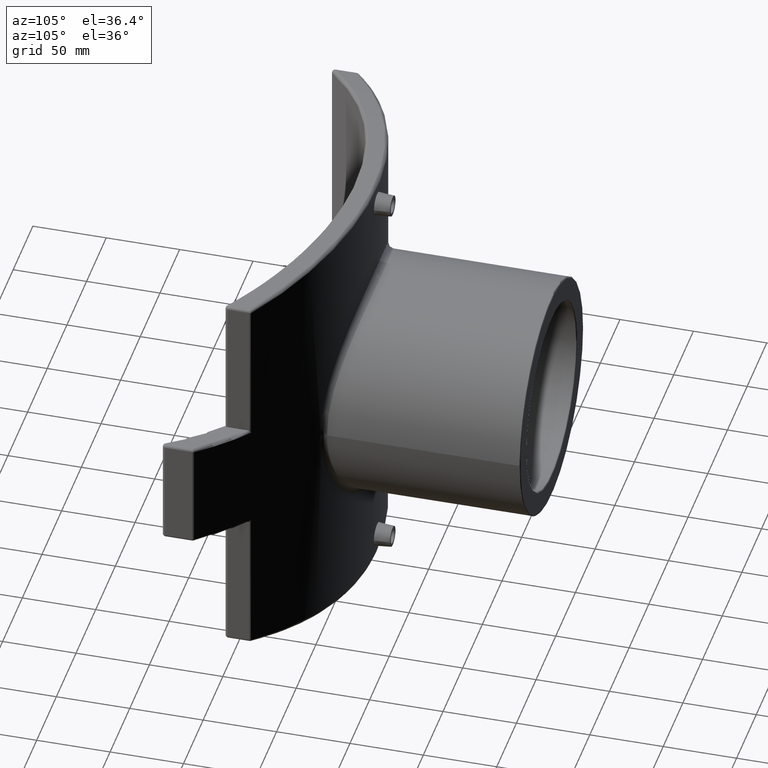
[diagram: clean part render]
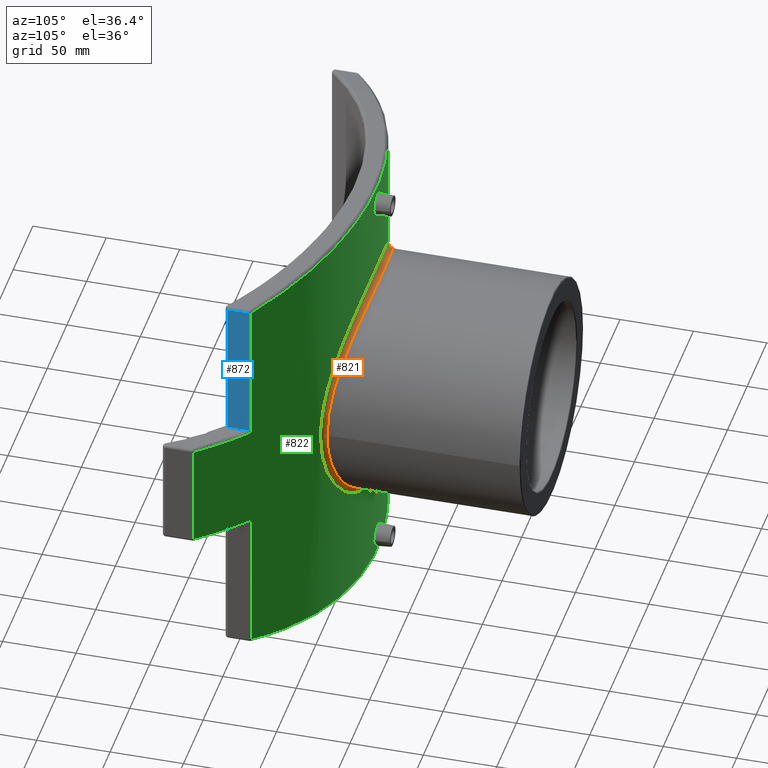
[diagram: same view with three faces highlighted in distinct colors, each labeled with its STEP entity id]
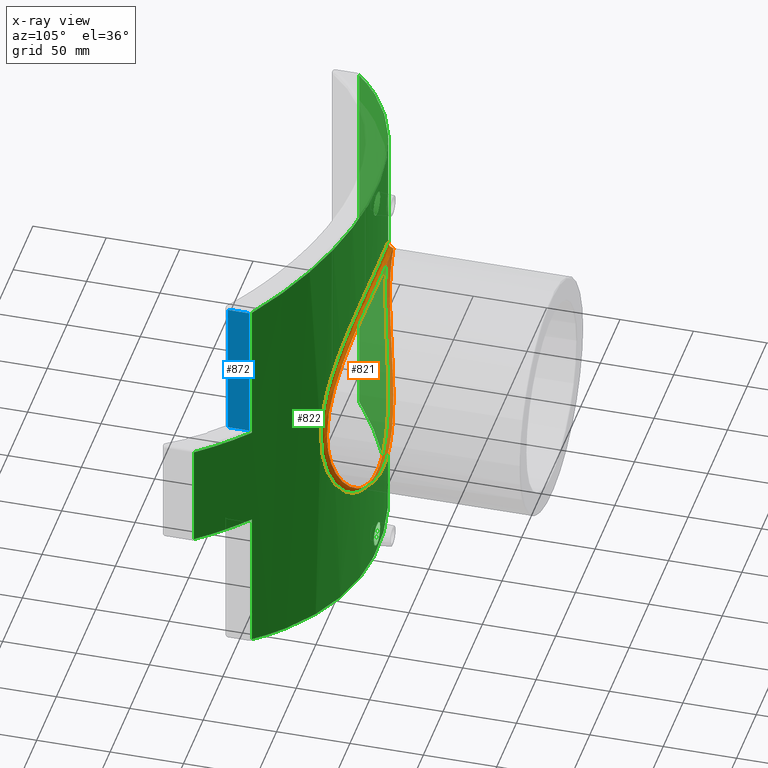
[diagram: x-ray of the same camera — body ghosted, the three highlighted faces saturated]
A machine part, auxiliary view with three faces highlighted in distinct colors.
The next image is the same camera in x-ray (body ghosted, the three faces saturated) — at least one of them is partly hidden behind the body in this view.
Their STEP definitions:

[orange] entity #821 — the highlighted face is a freeform B-spline surface patch.
#89=B_SPLINE_SURFACE_WITH_KNOTS('',3,3,((#1395,#1396,#1397,#1398,#1399,
#1400,#1401,#1402,#1403,#1404,#1405,#1406,#1407,#1408,#1409,#1410,#1411,
#1412,#1413,#1414,#1415,#1416,#1417,#1418,#1419),(#1420,#1421,#1422,#1423,
#1424,#1425,#1426,#1427,#1428,#1429,#1430,#1431,#1432,#1433,#1434,#1435,
#1436,#1437,#1438,#1439,#1440,#1441,#1442,#1443,#1444),(#1445,#1446,#1447,
#1448,#1449,#1450,#1451,#1452,#1453,#1454,#1455,#1456,#1457,#1458,#1459,
#1460,#1461,#1462,#1463,#1464,#1465,#1466,#1467,#1468,#1469),(#1470,#1471,
#1472,#1473,#1474,#1475,#1476,#1477,#1478,#1479,#1480,#1481,#1482,#1483,
#1484,#1485,#1486,#1487,#1488,#1489,#1490,#1491,#1492,#1493,#1494),(#1495,
#1496,#1497,#1498,#1499,#1500,#1501,#1502,#1503,#1504,#1505,#1506,#1507,
#1508,#1509,#1510,#1511,#1512,#1513,#1514,#1515,#1516,#1517,#1518,#1519)),
 .UNSPECIFIED.,.F.,.T.,.F.,(4,1,4),(4,1,1,1,1,1,1,1,1,1,1,1,1,1,1,1,1,1,
1,1,1,1,4),(0.,0.571428571428571,1.),(-2.33815226552735E-18,1.74028306102578,
3.48056612205155,6.9611322441031,9.28150965880413,11.6018870735052,13.9222644882062,
16.2426419029072,18.5630193176083,20.8833967323093,23.2037741470103,25.5241515617114,
27.8445289764124,30.1649063911134,32.4852838058145,34.8056612205155,36.5459442815413,
38.2862273425671,39.1563688730799,41.7667934646186,45.2473595866702,46.9876426476959,
48.7279257087217),.UNSPECIFIED.);
#95=B_SPLINE_CURVE_WITH_KNOTS('',3,(#1370,#1371,#1372,#1373,#1374,#1375,
#1376,#1377,#1378,#1379,#1380,#1381,#1382,#1383,#1384,#1385,#1386,#1387,
#1388,#1389,#1390,#1391,#1392,#1393,#1394),.UNSPECIFIED.,.T.,.F.,(4,1,1,
1,1,1,1,1,1,1,1,1,1,1,1,1,1,1,1,1,1,1,4),(-2.33815226552735E-18,1.74028306102578,
3.48056612205155,6.9611322441031,9.28150965880413,11.6018870735052,13.9222644882062,
16.2426419029072,18.5630193176083,20.8833967323093,23.2037741470103,25.5241515617114,
27.8445289764124,30.1649063911134,32.4852838058145,34.8056612205155,36.5459442815413,
38.2862273425671,39.1563688730799,41.7667934646186,45.2473595866702,46.9876426476959,
48.7279257087217),.UNSPECIFIED.);
#96=B_SPLINE_CURVE_WITH_KNOTS('',3,(#1522,#1523,#1524,#1525,#1526,#1527,
#1528,#1529,#1530,#1531,#1532,#1533,#1534,#1535,#1536,#1537,#1538,#1539,
#1540,#1541,#1542,#1543,#1544,#1545,#1546),.UNSPECIFIED.,.T.,.F.,(4,1,1,
1,1,1,1,1,1,1,1,1,1,1,1,1,1,1,1,1,1,1,4),(-48.7279257087217,-46.9876426476959,
-45.2473595866702,-41.7667934646186,-39.1563688730799,-38.2862273425671,
-36.5459442815413,-34.8056612205155,-32.4852838058145,-30.1649063911134,
-27.8445289764124,-25.5241515617114,-23.2037741470103,-20.8833967323093,
-18.5630193176083,-16.2426419029072,-13.9222644882062,-11.6018870735052,
-9.28150965880413,-6.9611322441031,-3.48056612205155,-1.74028306102578,
2.33815226552735E-18),.UNSPECIFIED.);
#184=FACE_OUTER_BOUND('',#255,.T.);
#255=EDGE_LOOP('',(#592,#593,#594,#595));
#338=CIRCLE('',#893,4.00000000000001);
#402=VERTEX_POINT('',#1369);
#403=VERTEX_POINT('',#1520);
#473=EDGE_CURVE('',#402,#402,#95,.T.);
#474=EDGE_CURVE('',#403,#402,#338,.T.);
#475=EDGE_CURVE('',#403,#403,#96,.T.);
#592=ORIENTED_EDGE('',*,*,#474,.T.);
#593=ORIENTED_EDGE('',*,*,#473,.T.);
#594=ORIENTED_EDGE('',*,*,#474,.F.);
#595=ORIENTED_EDGE('',*,*,#475,.T.);
#821=ADVANCED_FACE('',(#184),#89,.T.);
#893=AXIS2_PLACEMENT_3D('',#1521,#1028,#1029);
#1028=DIRECTION('center_axis',(0.,-3.00542680027778E-16,-1.));
#1029=DIRECTION('ref_axis',(-0.383561643835616,-0.923515276201818,2.77555756156288E-16));
#1369=CARTESIAN_POINT('',(80.,202.249845488198,-5.55111512312578E-16));
#1370=CARTESIAN_POINT('Ctrl Pts',(80.0004488767873,202.249269617968,7.15977342936643E-5));
#1371=CARTESIAN_POINT('Ctrl Pts',(80.0003600274371,202.249175648554,6.04190311180766));
#1372=CARTESIAN_POINT('Ctrl Pts',(78.6203361259388,202.860054318116,18.1250130461819));
#1373=CARTESIAN_POINT('Ctrl Pts',(70.5819080288915,206.206465741133,40.8841764438193));
#1374=CARTESIAN_POINT('Ctrl Pts',(54.1852015292653,212.010010224419,61.3739766472002));
#1375=CARTESIAN_POINT('Ctrl Pts',(29.9069993703425,217.178767454363,75.4959365174421));
#1376=CARTESIAN_POINT('Ctrl Pts',(6.14626764597779,219.409513154501,81.0014012331245));
#1377=CARTESIAN_POINT('Ctrl Pts',(-18.2691659890036,218.641335925017,79.1411590182724));
#1378=CARTESIAN_POINT('Ctrl Pts',(-40.793994783905,215.156163962703,70.1970685737484));
#1379=CARTESIAN_POINT('Ctrl Pts',(-59.4964785806378,210.152291182072,55.2202693485789));
#1380=CARTESIAN_POINT('Ctrl Pts',(-73.0501553158526,205.237023332344,35.4422094970188));
#1381=CARTESIAN_POINT('Ctrl Pts',(-80.2997346120817,202.123053516472,12.2530065847879));
#1382=CARTESIAN_POINT('Ctrl Pts',(-80.3000352960473,202.122588493016,-12.2522564189039));
#1383=CARTESIAN_POINT('Ctrl Pts',(-73.0498568844576,205.237978081614,-35.4419120261875));
#1384=CARTESIAN_POINT('Ctrl Pts',(-59.4971988793186,210.151024848992,-55.2189901040724));
#1385=CARTESIAN_POINT('Ctrl Pts',(-40.7941557362652,215.157827233391,-70.1981831478588));
#1386=CARTESIAN_POINT('Ctrl Pts',(-20.1462313608208,218.347881407558,-78.3938690408521));
#1387=CARTESIAN_POINT('Ctrl Pts',(0.00316159241978377,219.281170881787,
-80.6891975232019));
#1388=CARTESIAN_POINT('Ctrl Pts',(15.1031933597435,218.577237732905,-78.9660968133002));
#1389=CARTESIAN_POINT('Ctrl Pts',(32.4549789636641,216.611072322871,-73.9214302994889));
#1390=CARTESIAN_POINT('Ctrl Pts',(53.558309273775,212.237916472355,-62.1675139980827));
#1391=CARTESIAN_POINT('Ctrl Pts',(70.5801216151865,206.204673849269,-40.8821703830477));
#1392=CARTESIAN_POINT('Ctrl Pts',(78.6208692220402,202.860618134602,-18.1259760382583));
#1393=CARTESIAN_POINT('Ctrl Pts',(80.0005377261376,202.249363587383,-6.04175991633906));
#1394=CARTESIAN_POINT('Ctrl Pts',(80.0004488767873,202.249269617968,7.15977342936643E-5));
#1395=CARTESIAN_POINT('Ctrl Pts',(82.4662161366884,198.555219031339,7.51776209853724E-5));
#1396=CARTESIAN_POINT('Ctrl Pts',(82.4661245488308,198.555126778261,6.34399826739804));
#1397=CARTESIAN_POINT('Ctrl Pts',(81.043565664067,199.154847846553,19.0312636984911));
#1398=CARTESIAN_POINT('Ctrl Pts',(72.7573777969054,202.440137599742,42.9283852660102));
#1399=CARTESIAN_POINT('Ctrl Pts',(55.8552933572221,208.137681270548,64.4426754795603));
#1400=CARTESIAN_POINT('Ctrl Pts',(30.8287904468257,213.212031975744,79.2707333433141));
#1401=CARTESIAN_POINT('Ctrl Pts',(6.33570740218942,215.402033462181,85.0514712947807));
#1402=CARTESIAN_POINT('Ctrl Pts',(-18.8322567215414,214.647886867026,83.098216969186));
#1403=CARTESIAN_POINT('Ctrl Pts',(-42.0513439382035,211.226371013612,73.7069220024358));
#1404=CARTESIAN_POINT('Ctrl Pts',(-61.3302741533286,206.313893169614,57.9812828160079));
#1405=CARTESIAN_POINT('Ctrl Pts',(-75.3017011988754,201.488401901616,37.2143199718697));
#1406=CARTESIAN_POINT('Ctrl Pts',(-82.7747264323171,198.431308246765,12.8656569140273));
#1407=CARTESIAN_POINT('Ctrl Pts',(-82.7750363839392,198.430851716888,-12.8648692398492));
#1408=CARTESIAN_POINT('Ctrl Pts',(-75.3013935692525,201.489339212543,-37.2140076274968));
#1409=CARTESIAN_POINT('Ctrl Pts',(-61.3310166529963,206.312649965906,-57.9799396092761));
#1410=CARTESIAN_POINT('Ctrl Pts',(-42.0515098514241,211.228003904927,-73.7080923052516));
#1411=CARTESIAN_POINT('Ctrl Pts',(-20.7671768479694,214.359792249429,-82.3135624928948));
#1412=CARTESIAN_POINT('Ctrl Pts',(0.00325903876149769,215.276035340567,
-84.7236573993618));
#1413=CARTESIAN_POINT('Ctrl Pts',(15.5687027441191,214.584959418148,-82.9144016539653));
#1414=CARTESIAN_POINT('Ctrl Pts',(33.4553036577497,212.654705705102,-77.6175018144634));
#1415=CARTESIAN_POINT('Ctrl Pts',(55.2090790801584,208.36142484729,-65.2758896979868));
#1416=CARTESIAN_POINT('Ctrl Pts',(72.755536322504,202.438378436497,-42.9262789022001));
#1417=CARTESIAN_POINT('Ctrl Pts',(81.0441151912126,199.15540136502,-19.0322748401713));
#1418=CARTESIAN_POINT('Ctrl Pts',(82.4663077245459,198.555311284417,-6.34384791215605));
#1419=CARTESIAN_POINT('Ctrl Pts',(82.4662161366884,198.555219031339,7.51776209853724E-5));
#1420=CARTESIAN_POINT('Ctrl Pts',(81.6379777690586,198.899291048837,7.22662664169146E-5));
#1421=CARTESIAN_POINT('Ctrl Pts',(81.6378979519324,198.899205807618,6.27057864362562));
#1422=CARTESIAN_POINT('Ctrl Pts',(80.2192305594786,199.490095993724,18.8110339793559));
#1423=CARTESIAN_POINT('Ctrl Pts',(71.9625740029053,202.724765383777,42.416896641328));
#1424=CARTESIAN_POINT('Ctrl Pts',(55.154589021136,208.316678055292,63.6200269225782));
#1425=CARTESIAN_POINT('Ctrl Pts',(30.3915797445728,213.263904828049,78.1744706061802));
#1426=CARTESIAN_POINT('Ctrl Pts',(6.24031024015285,215.389990314281,83.8318187323606));
#1427=CARTESIAN_POINT('Ctrl Pts',(-18.5544233901619,214.658612224098,81.9216722849531));
#1428=CARTESIAN_POINT('Ctrl Pts',(-41.48552438479,211.330675129982,72.7187834385272));
#1429=CARTESIAN_POINT('Ctrl Pts',(-60.5983212930388,206.52779720363,57.2552231218401));
#1430=CARTESIAN_POINT('Ctrl Pts',(-74.4959658928286,201.78853638674,36.7749313736543));
#1431=CARTESIAN_POINT('Ctrl Pts',(-81.9454479200744,198.777240123413,12.718806007509));
#1432=CARTESIAN_POINT('Ctrl Pts',(-81.9457486783142,198.776854719242,-12.7180389210266));
#1433=CARTESIAN_POINT('Ctrl Pts',(-74.4956462885536,201.78932134174,-36.7745164852945));
#1434=CARTESIAN_POINT('Ctrl Pts',(-60.5990400985555,206.526764893851,-57.2540660369591));
#1435=CARTESIAN_POINT('Ctrl Pts',(-41.4856918566818,211.332283631518,-72.719831741982));
#1436=CARTESIAN_POINT('Ctrl Pts',(-20.465305830633,214.378435701632,-81.1529824210496));
#1437=CARTESIAN_POINT('Ctrl Pts',(0.00277531380126578,215.267860309219,
-83.5111767817448));
#1438=CARTESIAN_POINT('Ctrl Pts',(15.3434380120091,214.596794984985,-81.7408422494586));
#1439=CARTESIAN_POINT('Ctrl Pts',(32.9916606556746,212.720633295723,-76.5513760910548));
#1440=CARTESIAN_POINT('Ctrl Pts',(54.5114626686005,208.53596202856,-64.4410213693717));
#1441=CARTESIAN_POINT('Ctrl Pts',(71.9609590569583,202.723144519588,-42.4148835480857));
#1442=CARTESIAN_POINT('Ctrl Pts',(80.2197094622353,199.490607441035,-18.8120042847993));
#1443=CARTESIAN_POINT('Ctrl Pts',(81.6380575861847,198.899376290055,-6.27043411109277));
#1444=CARTESIAN_POINT('Ctrl Pts',(81.6379777690586,198.899291048837,7.22662664169146E-5));
#1445=CARTESIAN_POINT('Ctrl Pts',(80.4039728204877,200.00609319489,7.35769101394956E-5));
#1446=CARTESIAN_POINT('Ctrl Pts',(80.4039069328095,200.006001190773,6.14252865657106));
#1447=CARTESIAN_POINT('Ctrl Pts',(78.994042832725,200.595730158939,18.4268700846783));
#1448=CARTESIAN_POINT('Ctrl Pts',(70.7974018725395,203.824066703989,41.5258376769724));
#1449=CARTESIAN_POINT('Ctrl Pts',(54.1497908220897,209.390519667334,62.1888696779147));
#1450=CARTESIAN_POINT('Ctrl Pts',(29.7744495104154,214.291633802227,76.2744856577925));
#1451=CARTESIAN_POINT('Ctrl Pts',(6.10622549920888,216.389532751256,81.7213348871567));
#1452=CARTESIAN_POINT('Ctrl Pts',(-18.1638901846138,215.668615763577,79.8846769199167));
#1453=CARTESIAN_POINT('Ctrl Pts',(-40.6815568119393,212.378945208883,71.003917466991));
#1454=CARTESIAN_POINT('Ctrl Pts',(-59.5408664550067,207.610746158677,55.9917419446325));
#1455=CARTESIAN_POINT('Ctrl Pts',(-73.3100574179092,202.889930630525,36.0089641378095));
#1456=CARTESIAN_POINT('Ctrl Pts',(-80.7092683737497,199.884270531395,12.462620049636));
#1457=CARTESIAN_POINT('Ctrl Pts',(-80.7095958886725,199.883859300128,-12.4618766177203));
#1458=CARTESIAN_POINT('Ctrl Pts',(-73.3096829405411,202.890784173235,-36.0084949017638));
#1459=CARTESIAN_POINT('Ctrl Pts',(-59.5416618412047,207.609654327217,-55.9907348196939));
#1460=CARTESIAN_POINT('Ctrl Pts',(-40.6816323951896,212.380326803123,-71.0045757183336));
#1461=CARTESIAN_POINT('Ctrl Pts',(-20.0403960630623,215.391947319147,-79.1434819592002));
#1462=CARTESIAN_POINT('Ctrl Pts',(0.00235962450088326,216.26895303326,-81.4126910171043));
#1463=CARTESIAN_POINT('Ctrl Pts',(15.02550910941,215.607416914733,-79.7094284176214));
#1464=CARTESIAN_POINT('Ctrl Pts',(32.3356829320143,213.752737976843,-74.7024151082412));
#1465=CARTESIAN_POINT('Ctrl Pts',(53.5121314486597,209.609213856449,-62.9892232606135));
#1466=CARTESIAN_POINT('Ctrl Pts',(70.7960590893322,203.822311450361,-41.5237713683734));
#1467=CARTESIAN_POINT('Ctrl Pts',(78.9944381587941,200.596282183639,-18.4278603932873));
#1468=CARTESIAN_POINT('Ctrl Pts',(80.4040387081658,200.006185199006,-6.14238150275077));
#1469=CARTESIAN_POINT('Ctrl Pts',(80.4039728204877,200.00609319489,7.35769101394956E-5));
#1470=CARTESIAN_POINT('Ctrl Pts',(80.0004713424097,201.576623388139,7.07271423183358E-5));
#1471=CARTESIAN_POINT('Ctrl Pts',(80.0003919196275,201.576528711746,6.06290397498799));
#1472=CARTESIAN_POINT('Ctrl Pts',(78.6104290257353,202.181056769051,18.1880245533516));
#1473=CARTESIAN_POINT('Ctrl Pts',(70.5208365130547,205.49221058869,41.0072110332281));
#1474=CARTESIAN_POINT('Ctrl Pts',(54.0531509305443,211.224698916717,61.4885859811183));
#1475=CARTESIAN_POINT('Ctrl Pts',(29.787735635136,216.313541625408,75.5350021016701));
#1476=CARTESIAN_POINT('Ctrl Pts',(6.11661551784907,218.504541911472,80.9922292036235));
#1477=CARTESIAN_POINT('Ctrl Pts',(-18.1864848978625,217.75051417977,79.1498422042733));
#1478=CARTESIAN_POINT('Ctrl Pts',(-40.6592127869716,214.323793474809,70.270783824339));
#1479=CARTESIAN_POINT('Ctrl Pts',(-59.3866033541292,209.390362325502,55.341394961298));
#1480=CARTESIAN_POINT('Ctrl Pts',(-73.0029462441792,204.533270830967,35.5539850415909));
#1481=CARTESIAN_POINT('Ctrl Pts',(-80.301718252854,201.451722270189,12.2982847960724));
#1482=CARTESIAN_POINT('Ctrl Pts',(-80.3020229243952,201.451264475239,-12.2975407458944));
#1483=CARTESIAN_POINT('Ctrl Pts',(-73.0026261911673,204.534215750541,-35.5535829305099));
#1484=CARTESIAN_POINT('Ctrl Pts',(-59.3873346274441,209.389123739397,-55.3402756822126));
#1485=CARTESIAN_POINT('Ctrl Pts',(-40.659350287467,214.325347061809,-70.2717392924153));
#1486=CARTESIAN_POINT('Ctrl Pts',(-20.059211760588,217.462106801424,-78.4082841064483));
#1487=CARTESIAN_POINT('Ctrl Pts',(0.00281898440530527,218.378494959456,
-80.6828865061493));
#1488=CARTESIAN_POINT('Ctrl Pts',(15.0386800187718,217.687333221206,-78.9754080850925));
#1489=CARTESIAN_POINT('Ctrl Pts',(32.3355931239799,215.754359985627,-73.968358056439));
#1490=CARTESIAN_POINT('Ctrl Pts',(53.4230797385096,211.449919044425,-62.2817159755249));
#1491=CARTESIAN_POINT('Ctrl Pts',(70.5192318895886,205.490403937819,-41.0052356095788));
#1492=CARTESIAN_POINT('Ctrl Pts',(78.6109055624284,202.181624827406,-18.1889749337224));
#1493=CARTESIAN_POINT('Ctrl Pts',(80.0005507651918,201.576718064531,-6.06276252070334));
#1494=CARTESIAN_POINT('Ctrl Pts',(80.0004713424097,201.576623388139,7.07271423183358E-5));
#1495=CARTESIAN_POINT('Ctrl Pts',(80.0004488767873,202.249269617968,7.15977342936643E-5));
#1496=CARTESIAN_POINT('Ctrl Pts',(80.0003600274371,202.249175648554,6.04190311180766));
#1497=CARTESIAN_POINT('Ctrl Pts',(78.6203361259388,202.860054318116,18.1250130461819));
#1498=CARTESIAN_POINT('Ctrl Pts',(70.5819080288915,206.206465741133,40.8841764438193));
#1499=CARTESIAN_POINT('Ctrl Pts',(54.1852015292653,212.010010224419,61.3739766472002));
#1500=CARTESIAN_POINT('Ctrl Pts',(29.9069993703425,217.178767454363,75.4959365174421));
#1501=CARTESIAN_POINT('Ctrl Pts',(6.14626764597779,219.409513154501,81.0014012331245));
#1502=CARTESIAN_POINT('Ctrl Pts',(-18.2691659890036,218.641335925017,79.1411590182724));
#1503=CARTESIAN_POINT('Ctrl Pts',(-40.793994783905,215.156163962703,70.1970685737484));
#1504=CARTESIAN_POINT('Ctrl Pts',(-59.4964785806378,210.152291182072,55.2202693485789));
#1505=CARTESIAN_POINT('Ctrl Pts',(-73.0501553158526,205.237023332344,35.4422094970188));
#1506=CARTESIAN_POINT('Ctrl Pts',(-80.2997346120817,202.123053516472,12.2530065847879));
#1507=CARTESIAN_POINT('Ctrl Pts',(-80.3000352960473,202.122588493016,-12.2522564189039));
#1508=CARTESIAN_POINT('Ctrl Pts',(-73.0498568844576,205.237978081614,-35.4419120261875));
#1509=CARTESIAN_POINT('Ctrl Pts',(-59.4971988793186,210.151024848992,-55.2189901040724));
#1510=CARTESIAN_POINT('Ctrl Pts',(-40.7941557362652,215.157827233391,-70.1981831478588));
#1511=CARTESIAN_POINT('Ctrl Pts',(-20.1462313608208,218.347881407558,-78.3938690408521));
#1512=CARTESIAN_POINT('Ctrl Pts',(0.00316159241978377,219.281170881787,
-80.6891975232019));
#1513=CARTESIAN_POINT('Ctrl Pts',(15.1031933597435,218.577237732905,-78.9660968133002));
#1514=CARTESIAN_POINT('Ctrl Pts',(32.4549789636641,216.611072322871,-73.9214302994889));
#1515=CARTESIAN_POINT('Ctrl Pts',(53.558309273775,212.237916472355,-62.1675139980827));
#1516=CARTESIAN_POINT('Ctrl Pts',(70.5801216151865,206.204673849269,-40.8821703830477));
#1517=CARTESIAN_POINT('Ctrl Pts',(78.6208692220402,202.860618134602,-18.1259760382583));
#1518=CARTESIAN_POINT('Ctrl Pts',(80.0005377261376,202.249363587383,-6.04175991633906));
#1519=CARTESIAN_POINT('Ctrl Pts',(80.0004488767873,202.249269617968,7.15977342936643E-5));
#1520=CARTESIAN_POINT('',(82.4657534246575,198.555784383391,-5.55111512312578E-16));
#1521=CARTESIAN_POINT('Origin',(84.,202.249845488198,-5.55111512312578E-16));
#1522=CARTESIAN_POINT('Ctrl Pts',(82.4662161366884,198.555219031339,7.51776209853724E-5));
#1523=CARTESIAN_POINT('Ctrl Pts',(82.4663077245459,198.555311284417,-6.34384791215605));
#1524=CARTESIAN_POINT('Ctrl Pts',(81.0441151912126,199.15540136502,-19.0322748401713));
#1525=CARTESIAN_POINT('Ctrl Pts',(72.755536322504,202.438378436497,-42.9262789022001));
#1526=CARTESIAN_POINT('Ctrl Pts',(55.2090790801584,208.36142484729,-65.2758896979868));
#1527=CARTESIAN_POINT('Ctrl Pts',(33.4553036577497,212.654705705102,-77.6175018144634));
#1528=CARTESIAN_POINT('Ctrl Pts',(15.5687027441191,214.584959418148,-82.9144016539653));
#1529=CARTESIAN_POINT('Ctrl Pts',(0.00325903876149769,215.276035340567,
-84.7236573993618));
#1530=CARTESIAN_POINT('Ctrl Pts',(-20.7671768479694,214.359792249429,-82.3135624928948));
#1531=CARTESIAN_POINT('Ctrl Pts',(-42.0515098514241,211.228003904927,-73.7080923052516));
#1532=CARTESIAN_POINT('Ctrl Pts',(-61.3310166529963,206.312649965906,-57.9799396092761));
#1533=CARTESIAN_POINT('Ctrl Pts',(-75.3013935692525,201.489339212543,-37.2140076274968));
#1534=CARTESIAN_POINT('Ctrl Pts',(-82.7750363839392,198.430851716888,-12.8648692398492));
#1535=CARTESIAN_POINT('Ctrl Pts',(-82.7747264323171,198.431308246765,12.8656569140273));
#1536=CARTESIAN_POINT('Ctrl Pts',(-75.3017011988754,201.488401901616,37.2143199718697));
#1537=CARTESIAN_POINT('Ctrl Pts',(-61.3302741533286,206.313893169614,57.9812828160079));
#1538=CARTESIAN_POINT('Ctrl Pts',(-42.0513439382035,211.226371013612,73.7069220024358));
#1539=CARTESIAN_POINT('Ctrl Pts',(-18.8322567215414,214.647886867026,83.098216969186));
#1540=CARTESIAN_POINT('Ctrl Pts',(6.33570740218942,215.402033462181,85.0514712947807));
#1541=CARTESIAN_POINT('Ctrl Pts',(30.8287904468257,213.212031975744,79.2707333433141));
#1542=CARTESIAN_POINT('Ctrl Pts',(55.8552933572221,208.137681270548,64.4426754795603));
#1543=CARTESIAN_POINT('Ctrl Pts',(72.7573777969054,202.440137599742,42.9283852660102));
#1544=CARTESIAN_POINT('Ctrl Pts',(81.043565664067,199.154847846553,19.0312636984911));
#1545=CARTESIAN_POINT('Ctrl Pts',(82.4661245488308,198.555126778261,6.34399826739804));
#1546=CARTESIAN_POINT('Ctrl Pts',(82.4662161366884,198.555219031339,7.51776209853724E-5));

[blue] entity #872 — the highlighted planar face has unit normal (1, 0, 0).
#40=LINE('',#2064,#70);
#42=LINE('',#2085,#72);
#44=LINE('',#2089,#74);
#57=LINE('',#2234,#87);
#70=VECTOR('',#1209,95.8920048770969);
#72=VECTOR('',#1221,14.5110746154759);
#74=VECTOR('',#1225,96.3515375358321);
#87=VECTOR('',#1268,12.8466166978308);
#111=B_SPLINE_CURVE_WITH_KNOTS('',3,(#2127,#2128,#2129,#2130,#2131,#2132),
 .UNSPECIFIED.,.F.,.F.,(4,2,4),(-1.19476626613483,-1.13536285389705,-1.0303794857088),
 .UNSPECIFIED.);
#150=PLANE('',#998);
#235=FACE_OUTER_BOUND('',#322,.T.);
#322=EDGE_LOOP('',(#763,#764,#765,#766,#767));
#451=VERTEX_POINT('',#1897);
#457=VERTEX_POINT('',#1977);
#459=VERTEX_POINT('',#2063);
#462=VERTEX_POINT('',#2088);
#465=VERTEX_POINT('',#2125);
#548=EDGE_CURVE('',#459,#457,#40,.T.);
#554=EDGE_CURVE('',#457,#451,#42,.T.);
#556=EDGE_CURVE('',#451,#462,#44,.T.);
#568=EDGE_CURVE('',#462,#465,#111,.T.);
#580=EDGE_CURVE('',#459,#465,#57,.T.);
#763=ORIENTED_EDGE('',*,*,#556,.F.);
#764=ORIENTED_EDGE('',*,*,#554,.F.);
#765=ORIENTED_EDGE('',*,*,#548,.F.);
#766=ORIENTED_EDGE('',*,*,#580,.T.);
#767=ORIENTED_EDGE('',*,*,#568,.F.);
#872=ADVANCED_FACE('',(#235),#150,.T.);
#998=AXIS2_PLACEMENT_3D('',#2233,#1266,#1267);
#1209=DIRECTION('',(0.,0.,1.));
#1221=DIRECTION('',(0.,1.,0.));
#1225=DIRECTION('',(0.,0.,-1.));
#1266=DIRECTION('center_axis',(1.,0.,0.));
#1267=DIRECTION('ref_axis',(0.,1.,0.));
#1268=DIRECTION('',(0.,1.,0.));
#1897=CARTESIAN_POINT('',(137.25,164.549194771655,133.392004877097));
#1977=CARTESIAN_POINT('',(137.25,150.038120156179,133.392004877097));
#2063=CARTESIAN_POINT('',(137.25,150.038120156179,37.5));
#2064=CARTESIAN_POINT('',(137.25,150.038120156179,0.));
#2085=CARTESIAN_POINT('',(137.25,0.,133.392004877097));
#2088=CARTESIAN_POINT('',(137.25,164.549194771655,37.0404673412648));
#2089=CARTESIAN_POINT('',(137.25,164.549194771655,0.));
#2125=CARTESIAN_POINT('',(137.25,162.88473685401,37.5));
#2127=CARTESIAN_POINT('Ctrl Pts',(137.25,164.549194771652,37.0404673412666));
#2128=CARTESIAN_POINT('Ctrl Pts',(137.25,164.368245943331,37.1555248492742));
#2129=CARTESIAN_POINT('Ctrl Pts',(137.25,164.165752159975,37.2499010546381));
#2130=CARTESIAN_POINT('Ctrl Pts',(137.25,163.649187455461,37.4327031675438));
#2131=CARTESIAN_POINT('Ctrl Pts',(137.25,163.234681414637,37.5));
#2132=CARTESIAN_POINT('Ctrl Pts',(137.25,162.88473685401,37.5));
#2233=CARTESIAN_POINT('Origin',(137.25,145.473150443647,0.));
#2234=CARTESIAN_POINT('',(137.25,141.631632000128,37.5));

[green] entity #822 — the highlighted cylindrical surface (partial cylindrical patch) has radius 215 mm, axis along (0, 0, 1).
#29=LINE('',#1550,#59);
#30=LINE('',#1554,#60);
#31=LINE('',#1567,#61);
#32=LINE('',#1580,#62);
#59=VECTOR('',#1032,71.);
#60=VECTOR('',#1035,97.892004877097);
#61=VECTOR('',#1036,266.784009754194);
#62=VECTOR('',#1037,97.892004877097);
#96=B_SPLINE_CURVE_WITH_KNOTS('',3,(#1522,#1523,#1524,#1525,#1526,#1527,
#1528,#1529,#1530,#1531,#1532,#1533,#1534,#1535,#1536,#1537,#1538,#1539,
#1540,#1541,#1542,#1543,#1544,#1545,#1546),.UNSPECIFIED.,.T.,.F.,(4,1,1,
1,1,1,1,1,1,1,1,1,1,1,1,1,1,1,1,1,1,1,4),(-48.7279257087217,-46.9876426476959,
-45.2473595866702,-41.7667934646186,-39.1563688730799,-38.2862273425671,
-36.5459442815413,-34.8056612205155,-32.4852838058145,-30.1649063911134,
-27.8445289764124,-25.5241515617114,-23.2037741470103,-20.8833967323093,
-18.5630193176083,-16.2426419029072,-13.9222644882062,-11.6018870735052,
-9.28150965880413,-6.9611322441031,-3.48056612205155,-1.74028306102578,
2.33815226552735E-18),.UNSPECIFIED.);
#97=B_SPLINE_CURVE_WITH_KNOTS('',3,(#1556,#1557,#1558,#1559,#1560,#1561,
#1562,#1563,#1564,#1565),.UNSPECIFIED.,.F.,.F.,(4,1,1,1,1,1,1,4),(-34.0611602883262,
-29.8484664557769,-25.6357726232275,-21.4230787906782,-17.2103849581289,
-12.9976911255795,-8.7849972930302,-4.57230346048087),.UNSPECIFIED.);
#98=B_SPLINE_CURVE_WITH_KNOTS('',3,(#1569,#1570,#1571,#1572,#1573,#1574,
#1575,#1576,#1577,#1578),.UNSPECIFIED.,.F.,.F.,(4,1,1,1,1,1,1,4),(-30.7360959862472,
-26.523402153698,-22.3107083211488,-18.0980144885995,-13.8853206560503,
-9.67262682350105,-5.45993299095181,-1.24723915840258),.UNSPECIFIED.);
#99=B_SPLINE_CURVE_WITH_KNOTS('',3,(#1583,#1584,#1585,#1586,#1587,#1588,
#1589,#1590,#1591,#1592,#1593,#1594,#1595,#1596,#1597,#1598,#1599,#1600,
#1601,#1602,#1603,#1604,#1605,#1606,#1607,#1608,#1609,#1610,#1611,#1612,
#1613,#1614,#1615,#1616),.UNSPECIFIED.,.T.,.F.,(4,2,2,2,2,2,2,2,2,2,2,2,
2,2,2,2,4),(0.,0.298939862461717,0.597879724923433,0.896709336524648,1.19553894812586,
1.49436855972708,1.79319817132829,2.09213803379001,2.39107789625172,2.69001775871344,
2.98895762117516,3.28778723277637,3.58661684437759,3.8854464559788,4.18427606758001,
4.48321593004173,4.78215579250345),.UNSPECIFIED.);
#100=B_SPLINE_CURVE_WITH_KNOTS('',3,(#1618,#1619,#1620,#1621,#1622,#1623,
#1624,#1625,#1626,#1627,#1628,#1629,#1630,#1631,#1632,#1633,#1634,#1635,
#1636,#1637,#1638,#1639,#1640,#1641,#1642,#1643,#1644,#1645,#1646,#1647,
#1648,#1649,#1650,#1651),.UNSPECIFIED.,.T.,.F.,(4,2,2,2,2,2,2,2,2,2,2,2,
2,2,2,2,4),(0.,0.298939862461717,0.597879724923433,0.896709336524648,1.19553894812586,
1.49436855972708,1.79319817132829,2.09213803379001,2.39107789625172,2.69001775871344,
2.98895762117516,3.28778723277637,3.58661684437759,3.8854464559788,4.18427606758001,
4.48321593004173,4.78215579250345),.UNSPECIFIED.);
#117=CYLINDRICAL_SURFACE('',#894,215.);
#161=FACE_BOUND('',#257,.T.);
#162=FACE_BOUND('',#258,.T.);
#163=FACE_BOUND('',#259,.T.);
#185=FACE_OUTER_BOUND('',#256,.T.);
#256=EDGE_LOOP('',(#596,#597,#598,#599,#600,#601,#602,#603));
#257=EDGE_LOOP('',(#604));
#258=EDGE_LOOP('',(#605));
#259=EDGE_LOOP('',(#606));
#339=CIRCLE('',#895,215.);
#340=CIRCLE('',#896,215.);
#403=VERTEX_POINT('',#1520);
#404=VERTEX_POINT('',#1548);
#405=VERTEX_POINT('',#1549);
#406=VERTEX_POINT('',#1551);
#407=VERTEX_POINT('',#1553);
#408=VERTEX_POINT('',#1555);
#409=VERTEX_POINT('',#1566);
#410=VERTEX_POINT('',#1568);
#411=VERTEX_POINT('',#1579);
#412=VERTEX_POINT('',#1582);
#413=VERTEX_POINT('',#1617);
#475=EDGE_CURVE('',#403,#403,#96,.T.);
#476=EDGE_CURVE('',#404,#405,#29,.T.);
#477=EDGE_CURVE('',#406,#404,#339,.T.);
#478=EDGE_CURVE('',#407,#406,#30,.T.);
#479=EDGE_CURVE('',#408,#407,#97,.T.);
#480=EDGE_CURVE('',#409,#408,#31,.T.);
#481=EDGE_CURVE('',#410,#409,#98,.T.);
#482=EDGE_CURVE('',#411,#410,#32,.T.);
#483=EDGE_CURVE('',#405,#411,#340,.T.);
#484=EDGE_CURVE('',#412,#412,#99,.T.);
#485=EDGE_CURVE('',#413,#413,#100,.T.);
#596=ORIENTED_EDGE('',*,*,#476,.F.);
#597=ORIENTED_EDGE('',*,*,#477,.F.);
#598=ORIENTED_EDGE('',*,*,#478,.F.);
#599=ORIENTED_EDGE('',*,*,#479,.F.);
#600=ORIENTED_EDGE('',*,*,#480,.F.);
#601=ORIENTED_EDGE('',*,*,#481,.F.);
#602=ORIENTED_EDGE('',*,*,#482,.F.);
#603=ORIENTED_EDGE('',*,*,#483,.F.);
#604=ORIENTED_EDGE('',*,*,#484,.T.);
#605=ORIENTED_EDGE('',*,*,#485,.T.);
#606=ORIENTED_EDGE('',*,*,#475,.F.);
#822=ADVANCED_FACE('',(#185,#161,#162,#163),#117,.T.);
#894=AXIS2_PLACEMENT_3D('',#1547,#1030,#1031);
#895=AXIS2_PLACEMENT_3D('',#1552,#1033,#1034);
#896=AXIS2_PLACEMENT_3D('',#1581,#1038,#1039);
#1030=DIRECTION('center_axis',(0.,0.,1.));
#1031=DIRECTION('ref_axis',(1.,0.,0.));
#1032=DIRECTION('',(0.,0.,1.));
#1033=DIRECTION('center_axis',(0.,0.,-1.));
#1034=DIRECTION('ref_axis',(0.712959302615589,0.701205414136181,0.));
#1035=DIRECTION('',(0.,0.,1.));
#1036=DIRECTION('',(0.,0.,-1.));
#1037=DIRECTION('',(0.,0.,1.));
#1038=DIRECTION('center_axis',(0.,0.,1.));
#1039=DIRECTION('ref_axis',(0.712959302615589,0.701205414136181,0.));
#1520=CARTESIAN_POINT('',(82.4657534246575,198.555784383391,-5.55111512312578E-16));
#1522=CARTESIAN_POINT('Ctrl Pts',(82.4662161366884,198.555219031339,7.51776209853724E-5));
#1523=CARTESIAN_POINT('Ctrl Pts',(82.4663077245459,198.555311284417,-6.34384791215605));
#1524=CARTESIAN_POINT('Ctrl Pts',(81.0441151912126,199.15540136502,-19.0322748401713));
#1525=CARTESIAN_POINT('Ctrl Pts',(72.755536322504,202.438378436497,-42.9262789022001));
#1526=CARTESIAN_POINT('Ctrl Pts',(55.2090790801584,208.36142484729,-65.2758896979868));
#1527=CARTESIAN_POINT('Ctrl Pts',(33.4553036577497,212.654705705102,-77.6175018144634));
#1528=CARTESIAN_POINT('Ctrl Pts',(15.5687027441191,214.584959418148,-82.9144016539653));
#1529=CARTESIAN_POINT('Ctrl Pts',(0.00325903876149769,215.276035340567,
-84.7236573993618));
#1530=CARTESIAN_POINT('Ctrl Pts',(-20.7671768479694,214.359792249429,-82.3135624928948));
#1531=CARTESIAN_POINT('Ctrl Pts',(-42.0515098514241,211.228003904927,-73.7080923052516));
#1532=CARTESIAN_POINT('Ctrl Pts',(-61.3310166529963,206.312649965906,-57.9799396092761));
#1533=CARTESIAN_POINT('Ctrl Pts',(-75.3013935692525,201.489339212543,-37.2140076274968));
#1534=CARTESIAN_POINT('Ctrl Pts',(-82.7750363839392,198.430851716888,-12.8648692398492));
#1535=CARTESIAN_POINT('Ctrl Pts',(-82.7747264323171,198.431308246765,12.8656569140273));
#1536=CARTESIAN_POINT('Ctrl Pts',(-75.3017011988754,201.488401901616,37.2143199718697));
#1537=CARTESIAN_POINT('Ctrl Pts',(-61.3302741533286,206.313893169614,57.9812828160079));
#1538=CARTESIAN_POINT('Ctrl Pts',(-42.0513439382035,211.226371013612,73.7069220024358));
#1539=CARTESIAN_POINT('Ctrl Pts',(-18.8322567215414,214.647886867026,83.098216969186));
#1540=CARTESIAN_POINT('Ctrl Pts',(6.33570740218942,215.402033462181,85.0514712947807));
#1541=CARTESIAN_POINT('Ctrl Pts',(30.8287904468257,213.212031975744,79.2707333433141));
#1542=CARTESIAN_POINT('Ctrl Pts',(55.8552933572221,208.137681270548,64.4426754795603));
#1543=CARTESIAN_POINT('Ctrl Pts',(72.7573777969054,202.440137599742,42.9283852660102));
#1544=CARTESIAN_POINT('Ctrl Pts',(81.043565664067,199.154847846553,19.0312636984911));
#1545=CARTESIAN_POINT('Ctrl Pts',(82.4661245488308,198.555126778261,6.34399826739804));
#1546=CARTESIAN_POINT('Ctrl Pts',(82.4662161366884,198.555219031339,7.51776209853724E-5));
#1547=CARTESIAN_POINT('Origin',(0.,0.,0.));
#1548=CARTESIAN_POINT('',(167.306338028169,135.031808310502,-35.5));
#1549=CARTESIAN_POINT('',(167.306338028169,135.031808310502,35.5));
#1550=CARTESIAN_POINT('',(167.306338028169,135.031808310502,0.));
#1551=CARTESIAN_POINT('',(136.519953051643,166.094257633361,-35.5));
#1552=CARTESIAN_POINT('Origin',(0.,0.,-35.5));
#1553=CARTESIAN_POINT('',(136.519953051643,166.09425763336,-133.392004877097));
#1554=CARTESIAN_POINT('',(136.519953051643,166.09425763336,0.));
#1555=CARTESIAN_POINT('',(-136.519953051643,166.09425763336,-133.392004877097));
#1556=CARTESIAN_POINT('Ctrl Pts',(-136.519953051643,166.09425763336,-133.392004877097));
#1557=CARTESIAN_POINT('Ctrl Pts',(-125.723502697251,174.968320569116,-135.729773666671));
#1558=CARTESIAN_POINT('Ctrl Pts',(-102.362985684374,190.63350263303,-140.2024056175));
#1559=CARTESIAN_POINT('Ctrl Pts',(-63.2085418360928,206.958738335174,-145.332973837477));
#1560=CARTESIAN_POINT('Ctrl Pts',(-21.3774493653246,215.348534643414,-148.114874392193));
#1561=CARTESIAN_POINT('Ctrl Pts',(21.3779264621199,215.349641375073,-148.115915715155));
#1562=CARTESIAN_POINT('Ctrl Pts',(63.2085369696898,206.957927193873,-145.332261953252));
#1563=CARTESIAN_POINT('Ctrl Pts',(102.36306947524,190.633803253483,-140.202709754539));
#1564=CARTESIAN_POINT('Ctrl Pts',(125.723153322602,174.968607735038,-135.729849317197));
#1565=CARTESIAN_POINT('Ctrl Pts',(136.519953051643,166.09425763336,-133.392004877097));
#1566=CARTESIAN_POINT('',(-136.519953051643,166.094257633361,133.392004877097));
#1567=CARTESIAN_POINT('',(-136.519953051643,166.094257633361,0.));
#1568=CARTESIAN_POINT('',(136.519953051643,166.094257633361,133.392004877097));
#1569=CARTESIAN_POINT('Ctrl Pts',(136.519953051643,166.094257633361,133.392004877097));
#1570=CARTESIAN_POINT('Ctrl Pts',(125.723153322602,174.968607735038,135.729849317197));
#1571=CARTESIAN_POINT('Ctrl Pts',(102.362954510343,190.633498880703,140.202408929763));
#1572=CARTESIAN_POINT('Ctrl Pts',(63.2088293749993,206.958599912462,145.332928480881));
#1573=CARTESIAN_POINT('Ctrl Pts',(21.3776392347904,215.348569376209,148.11488559005));
#1574=CARTESIAN_POINT('Ctrl Pts',(-21.3777395679149,215.349596485162,148.11590116896));
#1575=CARTESIAN_POINT('Ctrl Pts',(-63.2082628580006,206.958055565316,145.332304108498));
#1576=CARTESIAN_POINT('Ctrl Pts',(-102.363094452045,190.63381078274,140.202707645887));
#1577=CARTESIAN_POINT('Ctrl Pts',(-125.723502697253,174.968320569114,135.72977366667));
#1578=CARTESIAN_POINT('Ctrl Pts',(-136.519953051643,166.09425763336,133.392004877097));
#1579=CARTESIAN_POINT('',(136.519953051643,166.09425763336,35.5));
#1580=CARTESIAN_POINT('',(136.519953051643,166.09425763336,0.));
#1581=CARTESIAN_POINT('Origin',(0.,0.,35.5));
#1582=CARTESIAN_POINT('',(7.94021187234381,214.853329123433,-135.));
#1583=CARTESIAN_POINT('Ctrl Pts',(-7.94021187234381,214.853329123433,-135.));
#1584=CARTESIAN_POINT('Ctrl Pts',(-7.94021187234381,214.853329123433,-135.996466208206));
#1585=CARTESIAN_POINT('Ctrl Pts',(-7.74052143677593,214.860999612224,-137.05910120673));
#1586=CARTESIAN_POINT('Ctrl Pts',(-6.92901799045989,214.888700344615,-139.013203535085));
#1587=CARTESIAN_POINT('Ctrl Pts',(-6.31721954357068,214.908330851865,-139.904682559071));
#1588=CARTESIAN_POINT('Ctrl Pts',(-4.90667416952584,214.945160712395,-141.311565725442));
#1589=CARTESIAN_POINT('Ctrl Pts',(-4.01400272521873,214.964750037002,-141.92091035169));
#1590=CARTESIAN_POINT('Ctrl Pts',(-2.05871690764931,214.992366517964,-142.728815334707));
#1591=CARTESIAN_POINT('Ctrl Pts',(-0.996098705337381,215.,-142.927379833375));
#1592=CARTESIAN_POINT('Ctrl Pts',(0.996098705337382,215.,-142.927379833375));
#1593=CARTESIAN_POINT('Ctrl Pts',(2.0587169076493,214.992366517964,-142.728815334707));
#1594=CARTESIAN_POINT('Ctrl Pts',(4.01400272521873,214.964750037002,-141.92091035169));
#1595=CARTESIAN_POINT('Ctrl Pts',(4.90667416952584,214.945160712395,-141.311565725442));
#1596=CARTESIAN_POINT('Ctrl Pts',(6.31721954357068,214.908330851865,-139.904682559071));
#1597=CARTESIAN_POINT('Ctrl Pts',(6.92901799045987,214.888700344615,-139.013203535085));
#1598=CARTESIAN_POINT('Ctrl Pts',(7.74052143677592,214.860999612224,-137.05910120673));
#1599=CARTESIAN_POINT('Ctrl Pts',(7.9402118723438,214.853329123433,-135.996466208206));
#1600=CARTESIAN_POINT('Ctrl Pts',(7.9402118723438,214.853329123433,-134.003533791794));
#1601=CARTESIAN_POINT('Ctrl Pts',(7.74052143677593,214.860999612224,-132.94089879327));
#1602=CARTESIAN_POINT('Ctrl Pts',(6.92901799045991,214.888700344615,-130.986796464915));
#1603=CARTESIAN_POINT('Ctrl Pts',(6.31721954357068,214.908330851865,-130.095317440929));
#1604=CARTESIAN_POINT('Ctrl Pts',(4.90667416952584,214.945160712395,-128.688434274558));
#1605=CARTESIAN_POINT('Ctrl Pts',(4.01400272521873,214.964750037002,-128.07908964831));
#1606=CARTESIAN_POINT('Ctrl Pts',(2.05871690764931,214.992366517964,-127.271184665293));
#1607=CARTESIAN_POINT('Ctrl Pts',(0.996098705337383,215.,-127.072620166625));
#1608=CARTESIAN_POINT('Ctrl Pts',(-0.996098705337382,215.,-127.072620166625));
#1609=CARTESIAN_POINT('Ctrl Pts',(-2.05871690764931,214.992366517964,-127.271184665293));
#1610=CARTESIAN_POINT('Ctrl Pts',(-4.01400272521873,214.964750037002,-128.07908964831));
#1611=CARTESIAN_POINT('Ctrl Pts',(-4.90667416952584,214.945160712395,-128.688434274558));
#1612=CARTESIAN_POINT('Ctrl Pts',(-6.31721954357068,214.908330851865,-130.095317440929));
#1613=CARTESIAN_POINT('Ctrl Pts',(-6.92901799045989,214.888700344615,-130.986796464915));
#1614=CARTESIAN_POINT('Ctrl Pts',(-7.74052143677592,214.860999612224,-132.94089879327));
#1615=CARTESIAN_POINT('Ctrl Pts',(-7.94021187234381,214.853329123433,-134.003533791794));
#1616=CARTESIAN_POINT('Ctrl Pts',(-7.94021187234381,214.853329123433,-135.));
#1617=CARTESIAN_POINT('',(7.94021187234381,214.853329123433,135.));
#1618=CARTESIAN_POINT('Ctrl Pts',(7.94021187234381,214.853329123433,135.));
#1619=CARTESIAN_POINT('Ctrl Pts',(7.94021187234381,214.853329123433,135.996466208206));
#1620=CARTESIAN_POINT('Ctrl Pts',(7.74052143677593,214.860999612224,137.05910120673));
#1621=CARTESIAN_POINT('Ctrl Pts',(6.92901799045989,214.888700344615,139.013203535085));
#1622=CARTESIAN_POINT('Ctrl Pts',(6.31721954357068,214.908330851865,139.904682559071));
#1623=CARTESIAN_POINT('Ctrl Pts',(4.90667416952584,214.945160712395,141.311565725442));
#1624=CARTESIAN_POINT('Ctrl Pts',(4.01400272521873,214.964750037002,141.92091035169));
#1625=CARTESIAN_POINT('Ctrl Pts',(2.05871690764931,214.992366517964,142.728815334707));
#1626=CARTESIAN_POINT('Ctrl Pts',(0.996098705337381,215.,142.927379833375));
#1627=CARTESIAN_POINT('Ctrl Pts',(-0.99609870533738,215.,142.927379833375));
#1628=CARTESIAN_POINT('Ctrl Pts',(-2.05871690764931,214.992366517964,142.728815334707));
#1629=CARTESIAN_POINT('Ctrl Pts',(-4.01400272521873,214.964750037002,141.92091035169));
#1630=CARTESIAN_POINT('Ctrl Pts',(-4.90667416952584,214.945160712395,141.311565725442));
#1631=CARTESIAN_POINT('Ctrl Pts',(-6.31721954357068,214.908330851865,139.904682559071));
#1632=CARTESIAN_POINT('Ctrl Pts',(-6.92901799045987,214.888700344615,139.013203535085));
#1633=CARTESIAN_POINT('Ctrl Pts',(-7.74052143677592,214.860999612224,137.05910120673));
#1634=CARTESIAN_POINT('Ctrl Pts',(-7.9402118723438,214.853329123433,135.996466208206));
#1635=CARTESIAN_POINT('Ctrl Pts',(-7.9402118723438,214.853329123433,134.003533791794));
#1636=CARTESIAN_POINT('Ctrl Pts',(-7.74052143677593,214.860999612224,132.94089879327));
#1637=CARTESIAN_POINT('Ctrl Pts',(-6.92901799045991,214.888700344615,130.986796464915));
#1638=CARTESIAN_POINT('Ctrl Pts',(-6.31721954357068,214.908330851865,130.095317440929));
#1639=CARTESIAN_POINT('Ctrl Pts',(-4.90667416952584,214.945160712395,128.688434274558));
#1640=CARTESIAN_POINT('Ctrl Pts',(-4.01400272521874,214.964750037002,128.07908964831));
#1641=CARTESIAN_POINT('Ctrl Pts',(-2.05871690764931,214.992366517964,127.271184665293));
#1642=CARTESIAN_POINT('Ctrl Pts',(-0.996098705337383,215.,127.072620166625));
#1643=CARTESIAN_POINT('Ctrl Pts',(0.99609870533738,215.,127.072620166625));
#1644=CARTESIAN_POINT('Ctrl Pts',(2.05871690764931,214.992366517964,127.271184665293));
#1645=CARTESIAN_POINT('Ctrl Pts',(4.01400272521873,214.964750037002,128.07908964831));
#1646=CARTESIAN_POINT('Ctrl Pts',(4.90667416952583,214.945160712395,128.688434274558));
#1647=CARTESIAN_POINT('Ctrl Pts',(6.31721954357067,214.908330851865,130.095317440929));
#1648=CARTESIAN_POINT('Ctrl Pts',(6.92901799045989,214.888700344615,130.986796464915));
#1649=CARTESIAN_POINT('Ctrl Pts',(7.74052143677592,214.860999612224,132.94089879327));
#1650=CARTESIAN_POINT('Ctrl Pts',(7.94021187234381,214.853329123433,134.003533791794));
#1651=CARTESIAN_POINT('Ctrl Pts',(7.94021187234381,214.853329123433,135.));